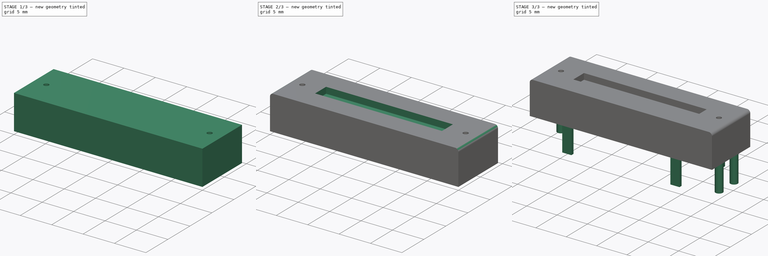
[diagram: build sequence overview — one tinted view per stage of 3, left to right]
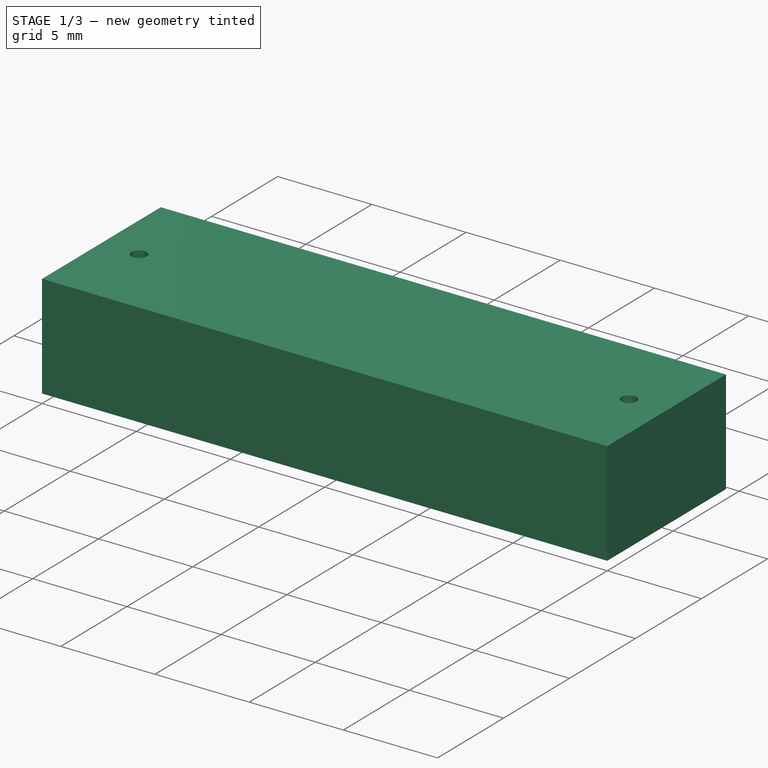
[diagram: stage 1 of 3 — iso view after this stage's code; geometry added in this stage tinted green]
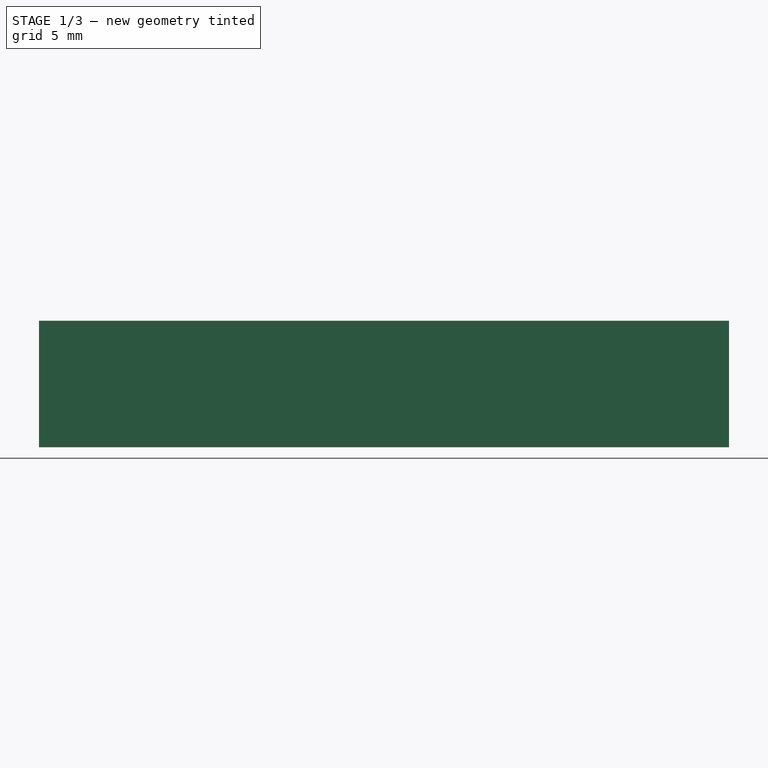
[diagram: stage 1 of 3 — front view after this stage's code; geometry added in this stage tinted green]
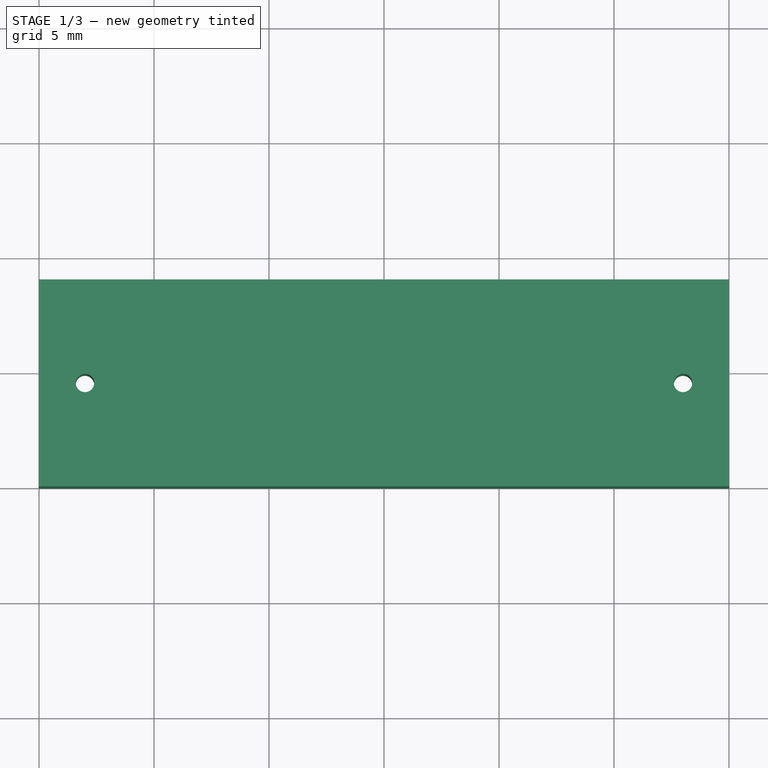
[diagram: stage 1 of 3 — top view after this stage's code; geometry added in this stage tinted green]
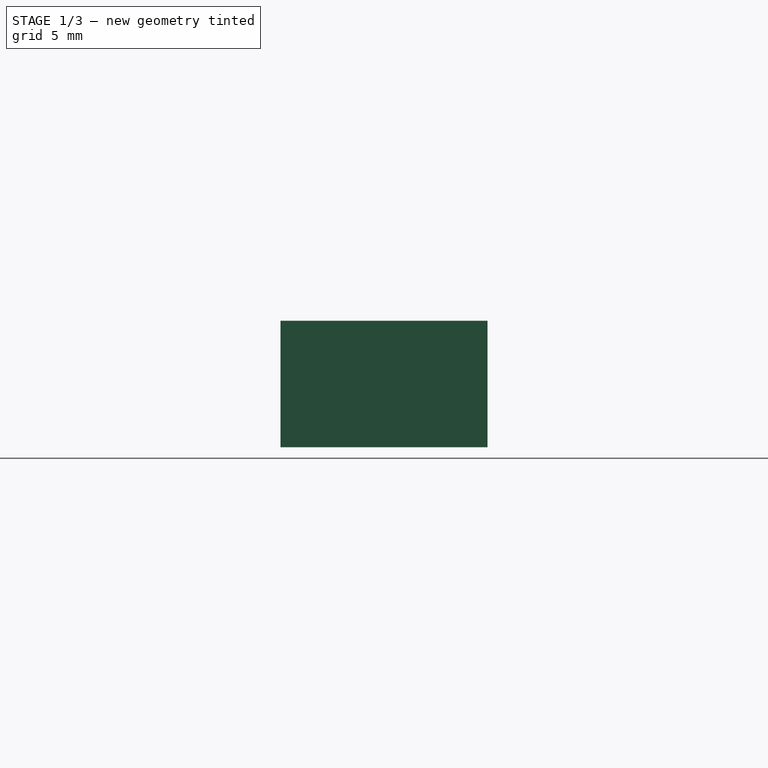
[diagram: stage 1 of 3 — right view after this stage's code; geometry added in this stage tinted green]
FCSTD DOCUMENT  (FreeCAD 0.15R4671 (Git))
Label: PTA1543-2010CI slide potentiometer
License: CC-BY 3.0
LicenseURL: http://creativecommons.org/licenses/by/3.0/
objects: Sketcher::SketchObject×5, PartDesign::Pad×3, PartDesign::Pocket×2, PartDesign::Fillet×2
note: 17 computed .brp shape members not serialized (recipe doc carries the construction recipe); baked Part::Feature solids carry a one-line shape summary decoded from their .brp

FEATURE [Sketcher::SketchObject] Sketch
  sketch-geometry (4):
    g0: LineSegment StartX=0 StartY=0 StartZ=0 EndX=30 EndY=0 EndZ=0
    g1: LineSegment StartX=30 StartY=0 StartZ=0 EndX=30 EndY=9 EndZ=0
    g2: LineSegment StartX=30 StartY=9 StartZ=0 EndX=0 EndY=9 EndZ=0
    g3: LineSegment StartX=0 StartY=9 StartZ=0 EndX=0 EndY=0 EndZ=0
  constraints (11):
    c: Coincident(g0,g1)
    c: Coincident(g1,g2)
    c: Coincident(g2,g3)
    c: Coincident(g3,g0)
    c: Horizontal(g0)
    c: Horizontal(g2)
    c: Vertical(g1)
    c: Vertical(g3)
    c: Coincident(g0,g-1)
    c: DistanceY(g-1,g2) = 9
    c: DistanceX(g2,g1) = 30
FEATURE [PartDesign::Pad] Pad
  Length = 5.5
  Length2 = 100
  Sketch = -> Sketch
  Type = 0
FEATURE [Sketcher::SketchObject] Sketch001
  ExternalGeometry = -> [Pad]
  Placement = pos=(0,0,5.5) rot=(0,0,1;0rad)
  Support = -> Pad [Face6]
  sketch-geometry (5):
    g0: LineSegment [constr] StartX=2 StartY=4.5 StartZ=0 EndX=28 EndY=4.5 EndZ=0
    g1: LineSegment [constr] StartX=2 StartY=4.5 StartZ=0 EndX=0 EndY=4.5 EndZ=0
    g2: LineSegment [constr] StartX=28 StartY=4.5 StartZ=0 EndX=30 EndY=4.5 EndZ=0
    g3: Circle CenterX=2 CenterY=4.5 CenterZ=0 NormalX=0 NormalY=0 NormalZ=1 Radius=0.4
    g4: Circle CenterX=28 CenterY=4.5 CenterZ=0 NormalX=0 NormalY=0 NormalZ=1 Radius=0.4
  constraints (14):
    c: Horizontal(g0)
    c: Symmetric(g-1,g-3,g0)
    c: Horizontal(g1)
    c: PointOnObject(g2,g-4)
    c: Horizontal(g2)
    c: PointOnObject(g1,g-2)
    c: Equal(g1,g2)
    c: Coincident(g1,g0)
    c: Coincident(g0,g2)
    c: DistanceX(g0,g0) = 26
    c: Equal(g4,g3)
    c: Radius(g3) = 0.4
    c: Coincident(g3,g0)
    c: Coincident(g4,g0)
FEATURE [PartDesign::Pocket] Pocket
  Length = 10
  Sketch = -> Sketch001
  Type = 0
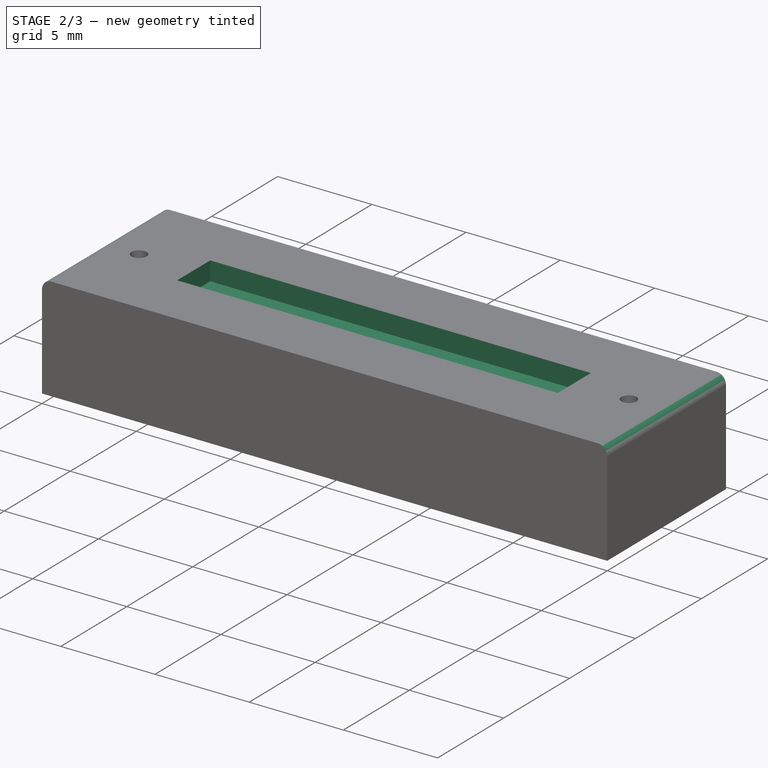
[diagram: stage 2 of 3 — iso view after this stage's code; geometry added in this stage tinted green]
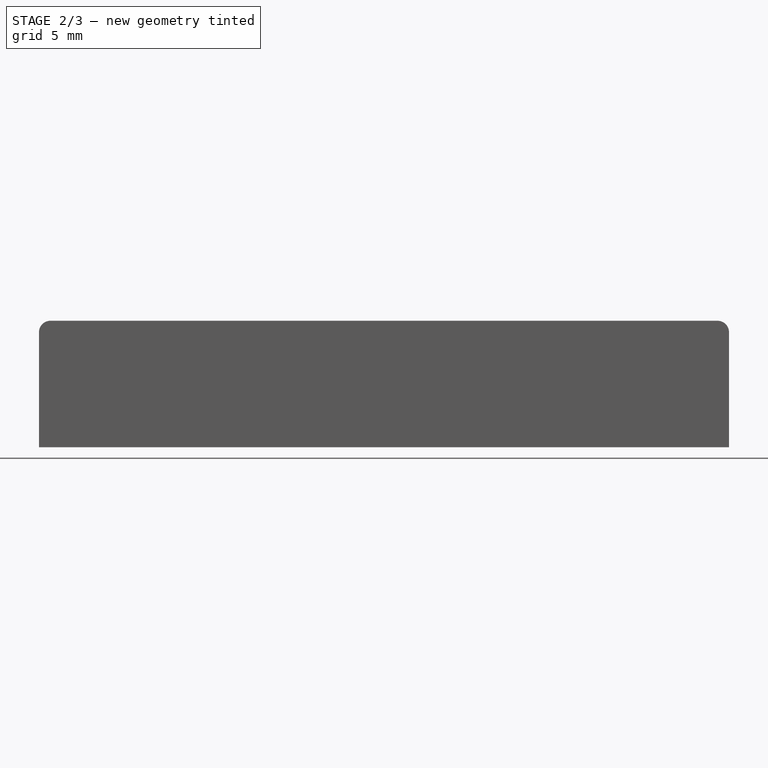
[diagram: stage 2 of 3 — front view after this stage's code; geometry added in this stage tinted green]
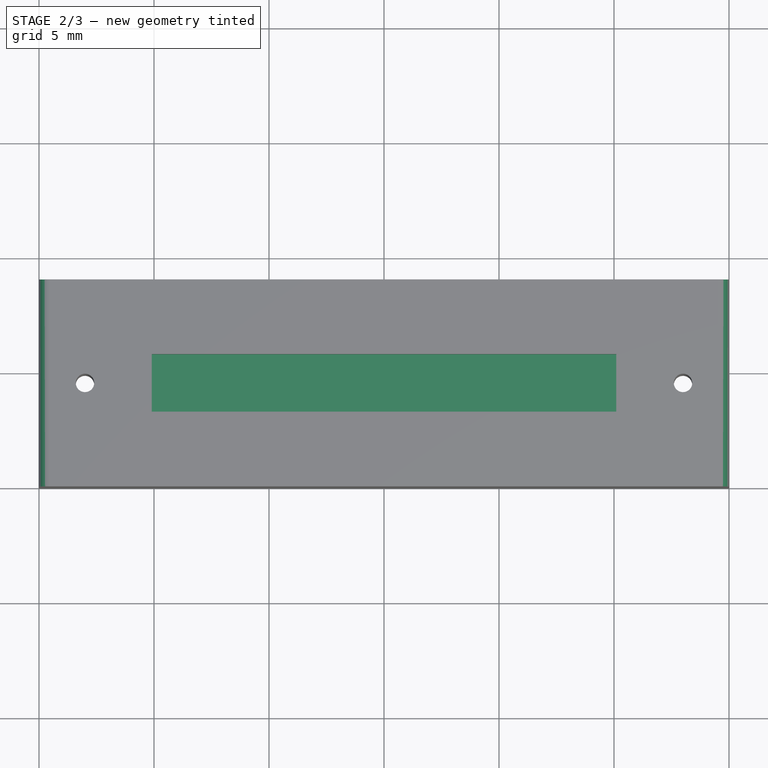
[diagram: stage 2 of 3 — top view after this stage's code; geometry added in this stage tinted green]
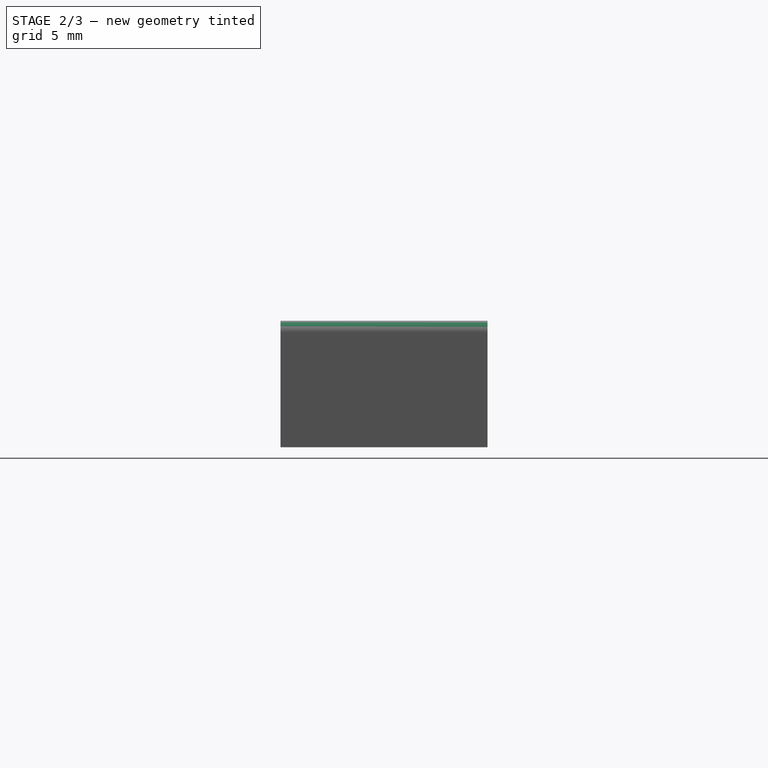
[diagram: stage 2 of 3 — right view after this stage's code; geometry added in this stage tinted green]
FEATURE [Sketcher::SketchObject] Sketch002
  ExternalGeometry = -> [Pocket]
  Placement = pos=(0,0,5.5) rot=(0,0,1;0rad)
  Support = -> Pocket [Face5]
  sketch-geometry (8):
    g0: LineSegment StartX=4.9 StartY=5.75 StartZ=0 EndX=25.1 EndY=5.75 EndZ=0
    g1: LineSegment StartX=25.1 StartY=5.75 StartZ=0 EndX=25.1 EndY=3.25 EndZ=0
    g2: LineSegment StartX=25.1 StartY=3.25 StartZ=0 EndX=4.9 EndY=3.25 EndZ=0
    g3: LineSegment StartX=4.9 StartY=3.25 StartZ=0 EndX=4.9 EndY=5.75 EndZ=0
    g4: LineSegment [constr] StartX=4.9 StartY=3.25 StartZ=0 EndX=0 EndY=3.25 EndZ=0
    g5: LineSegment [constr] StartX=25.1 StartY=3.25 StartZ=0 EndX=30 EndY=3.25 EndZ=0
    g6: LineSegment [constr] StartX=25.1 StartY=5.75 StartZ=0 EndX=25.1 EndY=9 EndZ=0
    g7: LineSegment [constr] StartX=25.1 StartY=3.25 StartZ=0 EndX=25.1 EndY=0 EndZ=0
  constraints (24):
    c: Coincident(g0,g1)
    c: Coincident(g1,g2)
    c: Coincident(g2,g3)
    c: Coincident(g3,g0)
    c: Horizontal(g0)
    c: Horizontal(g2)
    c: Vertical(g1)
    c: Vertical(g3)
    c: DistanceX(g0,g0) = 20.2
    c: Coincident(g4,g2)
    c: PointOnObject(g4,g-2)
    c: Horizontal(g4)
    c: Coincident(g5,g1)
    c: PointOnObject(g5,g-3)
    c: Horizontal(g5)
    c: Equal(g4,g5)
    c: DistanceY(g1,g0) = 2.5
    c: Coincident(g6,g0)
    c: PointOnObject(g6,g-4)
    c: Vertical(g6)
    c: Coincident(g7,g1)
    c: PointOnObject(g7,g-1)
    c: Vertical(g7)
    c: Equal(g7,g6)
FEATURE [PartDesign::Pocket] Pocket001
  Length = 1
  Sketch = -> Sketch002
  Type = 0
FEATURE [PartDesign::Fillet] Fillet
  Base = -> Pocket001 [Edge7]
  Radius = 0.5
FEATURE [PartDesign::Fillet] Fillet001
  Base = -> Fillet [Edge15]
  Radius = 0.5
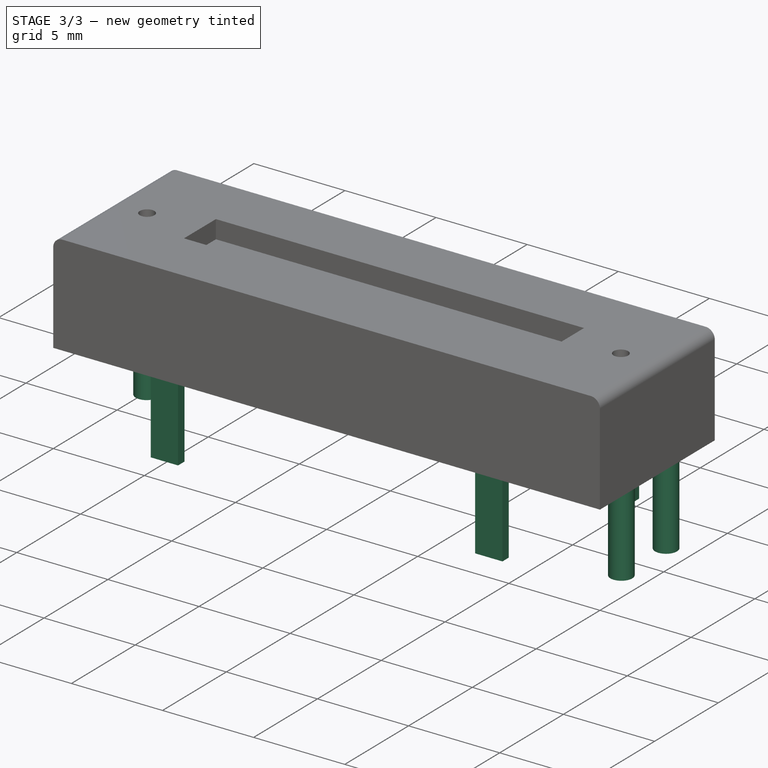
[diagram: stage 3 of 3 — iso view after this stage's code; geometry added in this stage tinted green]
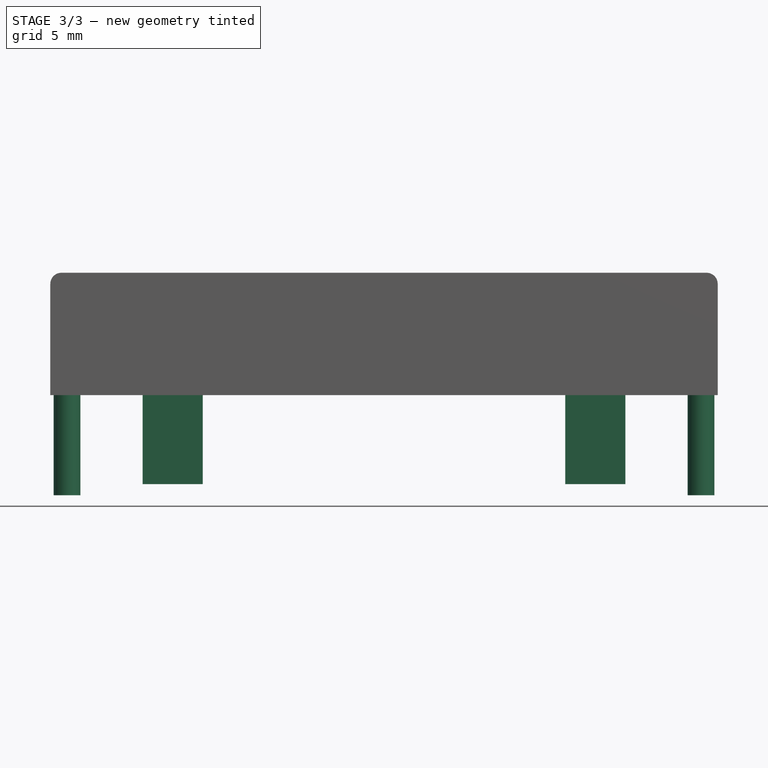
[diagram: stage 3 of 3 — front view after this stage's code; geometry added in this stage tinted green]
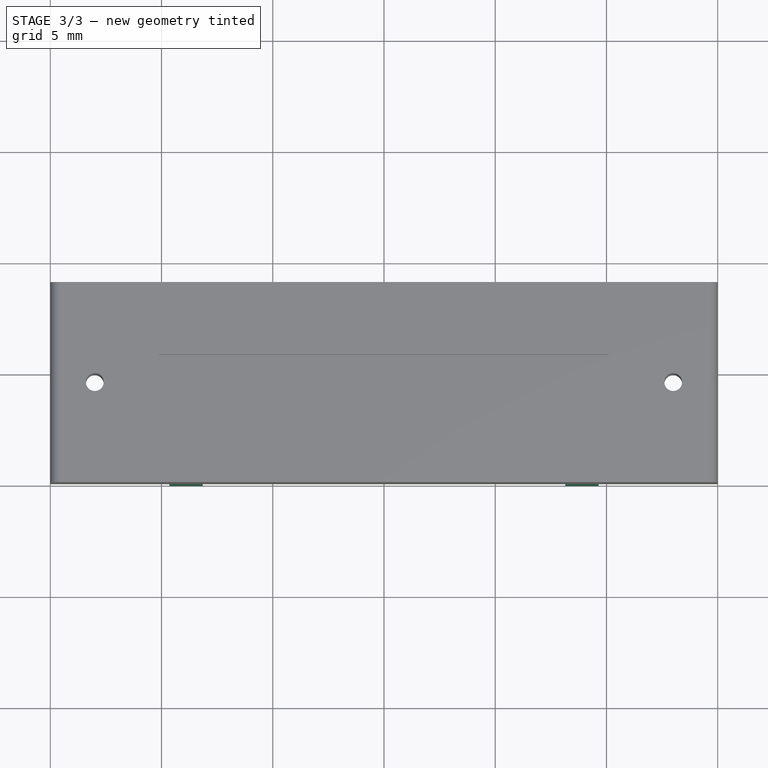
[diagram: stage 3 of 3 — top view after this stage's code; geometry added in this stage tinted green]
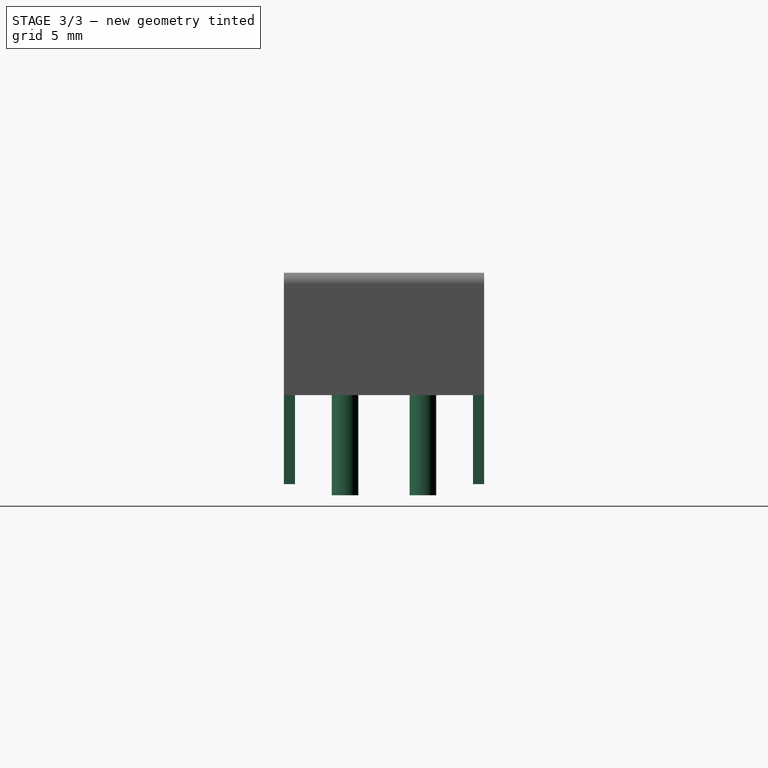
[diagram: stage 3 of 3 — right view after this stage's code; geometry added in this stage tinted green]
FEATURE [Sketcher::SketchObject] Sketch003
  ExternalGeometry = -> [Fillet001]
  Placement = pos=(0,0,0) rot=(1,0,0;3.14159rad)
  Support = -> Fillet001 [Face7]
  sketch-geometry (17):
    g0: LineSegment StartX=5.35 StartY=0 StartZ=0 EndX=6.85 EndY=0 EndZ=0
    g1: LineSegment StartX=6.85 StartY=0 StartZ=0 EndX=6.85 EndY=-0.5 EndZ=0
    g2: LineSegment StartX=6.85 StartY=-0.5 StartZ=0 EndX=5.35 EndY=-0.5 EndZ=0
    g3: LineSegment StartX=5.35 StartY=-0.5 StartZ=0 EndX=5.35 EndY=0 EndZ=0
    g4: LineSegment StartX=23.15 StartY=0 StartZ=0 EndX=24.65 EndY=0 EndZ=0
    g5: LineSegment StartX=24.65 StartY=0 StartZ=0 EndX=24.65 EndY=-0.5 EndZ=0
    g6: LineSegment StartX=24.65 StartY=-0.5 StartZ=0 EndX=23.15 EndY=-0.5 EndZ=0
    g7: LineSegment StartX=23.15 StartY=-0.5 StartZ=0 EndX=23.15 EndY=0 EndZ=0
    g8: LineSegment StartX=4.15 StartY=-8.5 StartZ=0 EndX=5.65 EndY=-8.5 EndZ=0
    g9: LineSegment StartX=5.65 StartY=-8.5 StartZ=0 EndX=5.65 EndY=-9 EndZ=0
    g10: LineSegment StartX=5.65 StartY=-9 StartZ=0 EndX=4.15 EndY=-9 EndZ=0
    g11: LineSegment StartX=4.15 StartY=-9 StartZ=0 EndX=4.15 EndY=-8.5 EndZ=0
    g12: LineSegment StartX=24.35 StartY=-8.5 StartZ=0 EndX=25.85 EndY=-8.5 EndZ=0
    g13: LineSegment StartX=25.85 StartY=-8.5 StartZ=0 EndX=25.85 EndY=-9 EndZ=0
    g14: LineSegment StartX=25.85 StartY=-9 StartZ=0 EndX=24.35 EndY=-9 EndZ=0
    g15: LineSegment StartX=24.35 StartY=-9 StartZ=0 EndX=24.35 EndY=-8.5 EndZ=0
    g16: LineSegment [constr] StartX=15 StartY=0 StartZ=0 EndX=15 EndY=-9 EndZ=0
  constraints (51):
    c: Coincident(g0,g1)
    c: Coincident(g1,g2)
    c: Coincident(g2,g3)
    c: Coincident(g3,g0)
    c: Horizontal(g0)
    c: Horizontal(g2)
    c: Vertical(g1)
    c: Vertical(g3)
    c: DistanceY(g0,g1) = -0.5
    c: DistanceX(g0,g0) = 1.5
    c: PointOnObject(g0,g-1)
    c: Coincident(g4,g5)
    c: Coincident(g5,g6)
    c: Coincident(g6,g7)
    c: Coincident(g7,g4)
    c: Horizontal(g4)
    c: Horizontal(g6)
    c: Vertical(g5)
    c: Vertical(g7)
    c: Equal(g4,g0)
    c: Equal(g5,g1)
    c: PointOnObject(g4,g-1)
    c: DistanceX(g0,g4) = 16.3
    c: Coincident(g8,g9)
    c: Coincident(g9,g10)
    c: Coincident(g10,g11)
    c: Coincident(g11,g8)
    c: Horizontal(g8)
    c: Horizontal(g10)
    c: Vertical(g9)
    c: Vertical(g11)
    c: Coincident(g12,g13)
    c: Coincident(g13,g14)
    c: Coincident(g14,g15)
    c: Coincident(g15,g12)
    c: Horizontal(g12)
    c: Horizontal(g14)
    c: Vertical(g13)
    c: Vertical(g15)
    c: Equal(g8,g0)
    c: Equal(g9,g1)
    c: Equal(g0,g12)
    c: Equal(g1,g13)
    c: PointOnObject(g10,g-4)
    c: PointOnObject(g14,g-4)
    c: DistanceX(g9,g14) = 18.7
    c: PointOnObject(g16,g-1)
    c: PointOnObject(g16,g-4)
    c: Symmetric(g-3,g-1,g16)
    c: Symmetric(g1,g6,g16)
    c: Symmetric(g9,g14,g16)
FEATURE [PartDesign::Pad] Pad001
  Length = 4
  Length2 = 100
  Sketch = -> Sketch003
  Type = 0
FEATURE [Sketcher::SketchObject] Sketch004
  ExternalGeometry = -> [Pad001]
  Placement = pos=(0,0,0) rot=(1,0,0;3.14159rad)
  Support = -> Pad001 [Face14]
  sketch-geometry (7):
    g0: Circle CenterX=29.25 CenterY=-6.25 CenterZ=0 NormalX=0 NormalY=0 NormalZ=1 Radius=0.6
    g1: Circle CenterX=0.75 CenterY=-6.25 CenterZ=0 NormalX=0 NormalY=0 NormalZ=1 Radius=0.6
    g2: Circle CenterX=29.25 CenterY=-2.75 CenterZ=0 NormalX=0 NormalY=0 NormalZ=1 Radius=0.6
    g3: LineSegment [constr] StartX=29.25 StartY=-2.75 StartZ=0 EndX=29.25 EndY=-6.25 EndZ=0
    g4: LineSegment [constr] StartX=29.25 StartY=-6.25 StartZ=0 EndX=0.75 EndY=-6.25 EndZ=0
    g5: LineSegment [constr] StartX=30 StartY=-4.5 StartZ=0 EndX=0 EndY=-4.5 EndZ=0
    g6: LineSegment [constr] StartX=15 StartY=0 StartZ=0 EndX=15 EndY=-9 EndZ=0
  constraints (19):
    c: Equal(g0,g2)
    c: Equal(g2,g1)
    c: Radius(g0) = 0.6
    c: Coincident(g3,g2)
    c: Vertical(g3)
    c: Coincident(g3,g0)
    c: DistanceY(g0,g2) = 3.5
    c: Horizontal(g4)
    c: Coincident(g4,g0)
    c: Coincident(g1,g4)
    c: DistanceX(g0,g1) = -28.5
    c: Symmetric(g-4,g-4,g5)
    c: Symmetric(g-4,g-1,g6)
    c: Symmetric(g0,g1,g6)
    c: Symmetric(g0,g2,g5)
    c: PointOnObject(g5,g-2)
    c: PointOnObject(g5,g-4)
    c: PointOnObject(g6,g-1)
    c: PointOnObject(g6,g-5)
FEATURE [PartDesign::Pad] Pad002
  Length = 4.5
  Length2 = 100
  Sketch = -> Sketch004
  Type = 0
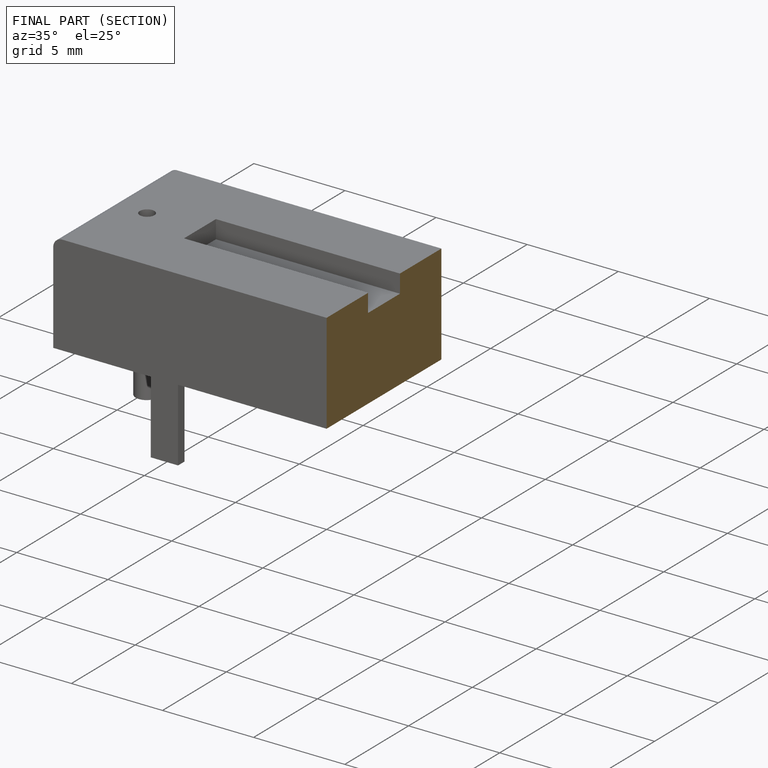
[diagram: finished part — half-section view (interior)]
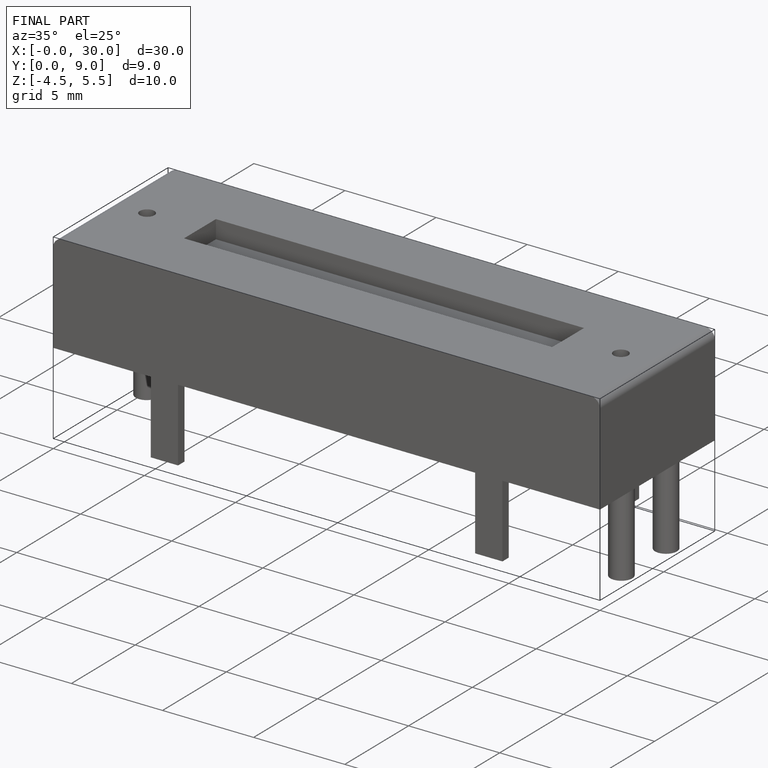
[diagram: finished part — iso view with bounding-box wireframe]
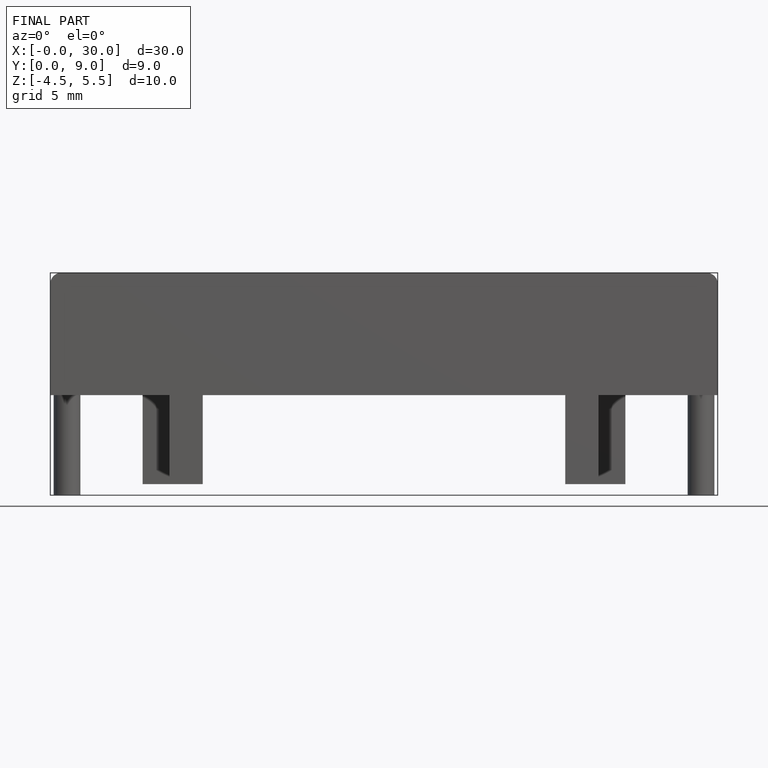
[diagram: finished part — front view with bounding-box wireframe]
